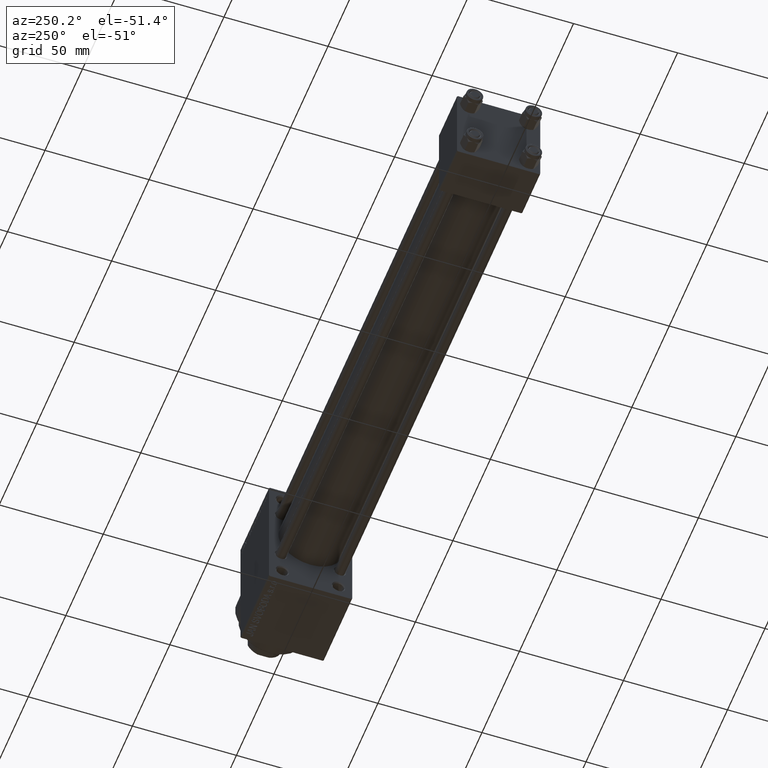
[diagram: clean part render]
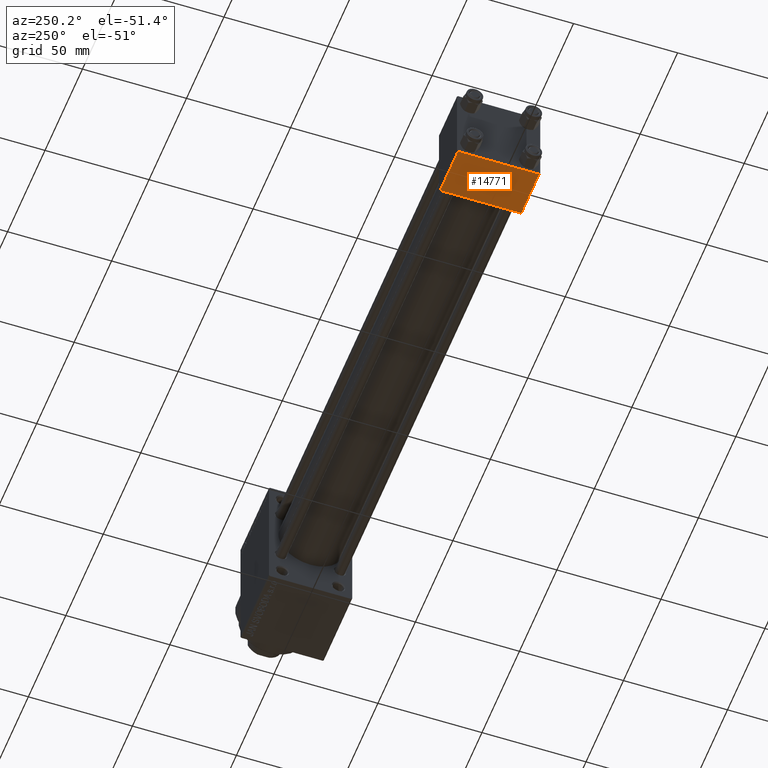
[diagram: same view with one face highlighted and labeled with its STEP entity id]
A machine part, auxiliary view. The second image highlights one B-rep face of the part: STEP entity #14771.
In plain terms, the highlighted planar face has unit normal (0, -0, -1).
Its self-contained STEP definition (entity closure, byte-faithful):
#517 = DIRECTION ( 'NONE',  ( 0.000000000000000000, -1.000000000000000000, 1.734723475976807094E-16 ) ) ;
#580 = VERTEX_POINT ( 'NONE', #25064 ) ;
#3132 = DIRECTION ( 'NONE',  ( 0.000000000000000000, -1.734723475976806848E-16, -1.000000000000000000 ) ) ;
#3341 = AXIS2_PLACEMENT_3D ( 'NONE', #39319, #3132, #32189 ) ;
#3598 = FACE_OUTER_BOUND ( 'NONE', #6313, .T. ) ;
#3854 = CARTESIAN_POINT ( 'NONE',  ( 24.00000000000000000, 19.50000000000000711, -20.00000000000000711 ) ) ;
#6313 = EDGE_LOOP ( 'NONE', ( #16155, #11198, #23876, #18506 ) ) ;
#6328 = EDGE_CURVE ( 'NONE', #27158, #40503, #19533, .T. ) ;
#11198 = ORIENTED_EDGE ( 'NONE', *, *, #6328, .T. ) ;
#12380 = CARTESIAN_POINT ( 'NONE',  ( 0.000000000000000000, -19.50000000000000711, -20.00000000000000000 ) ) ;
#14771 = ADVANCED_FACE ( 'NONE', ( #3598 ), #18124, .T. ) ;
#14916 = EDGE_CURVE ( 'NONE', #29111, #580, #41201, .T. ) ;
#16155 = ORIENTED_EDGE ( 'NONE', *, *, #16779, .F. ) ;
#16200 = CARTESIAN_POINT ( 'NONE',  ( 24.00000000000000000, -19.50000000000000711, -20.00000000000000000 ) ) ;
#16779 = EDGE_CURVE ( 'NONE', #27158, #580, #40520, .T. ) ;
#18124 = PLANE ( 'NONE',  #3341 ) ;
#18506 = ORIENTED_EDGE ( 'NONE', *, *, #14916, .T. ) ;
#19075 = VECTOR ( 'NONE', #33834, 1000.000000000000000 ) ;
#19533 = LINE ( 'NONE', #33605, #19075 ) ;
#23876 = ORIENTED_EDGE ( 'NONE', *, *, #36500, .T. ) ;
#25064 = CARTESIAN_POINT ( 'NONE',  ( 0.000000000000000000, -19.50000000000000711, -20.00000000000000000 ) ) ;
#25820 = DIRECTION ( 'NONE',  ( 0.000000000000000000, -1.000000000000000000, 1.734723475976807094E-16 ) ) ;
#27158 = VERTEX_POINT ( 'NONE', #41383 ) ;
#27342 = VECTOR ( 'NONE', #25820, 1000.000000000000000 ) ;
#27745 = VECTOR ( 'NONE', #517, 1000.000000000000000 ) ;
#29111 = VERTEX_POINT ( 'NONE', #16200 ) ;
#32189 = DIRECTION ( 'NONE',  ( 0.000000000000000000, 1.000000000000000000, -1.734723475976806848E-16 ) ) ;
#33605 = CARTESIAN_POINT ( 'NONE',  ( 24.00000000000000000, 19.50000000000000711, -20.00000000000000711 ) ) ;
#33834 = DIRECTION ( 'NONE',  ( 1.000000000000000000, 0.000000000000000000, 0.000000000000000000 ) ) ;
#34067 = CARTESIAN_POINT ( 'NONE',  ( 0.000000000000000000, 20.00000000000000000, -20.00000000000000711 ) ) ;
#36073 = LINE ( 'NONE', #43930, #27342 ) ;
#36500 = EDGE_CURVE ( 'NONE', #40503, #29111, #36073, .T. ) ;
#38078 = DIRECTION ( 'NONE',  ( -1.000000000000000000, 0.000000000000000000, 0.000000000000000000 ) ) ;
#39319 = CARTESIAN_POINT ( 'NONE',  ( 24.00000000000000000, 20.00000000000000000, -20.00000000000000711 ) ) ;
#40503 = VERTEX_POINT ( 'NONE', #3854 ) ;
#40520 = LINE ( 'NONE', #34067, #27745 ) ;
#41201 = LINE ( 'NONE', #12380, #44442 ) ;
#41383 = CARTESIAN_POINT ( 'NONE',  ( 0.000000000000000000, 19.50000000000000711, -20.00000000000000711 ) ) ;
#43930 = CARTESIAN_POINT ( 'NONE',  ( 24.00000000000000000, 20.00000000000000000, -20.00000000000000711 ) ) ;
#44442 = VECTOR ( 'NONE', #38078, 1000.000000000000000 ) ;